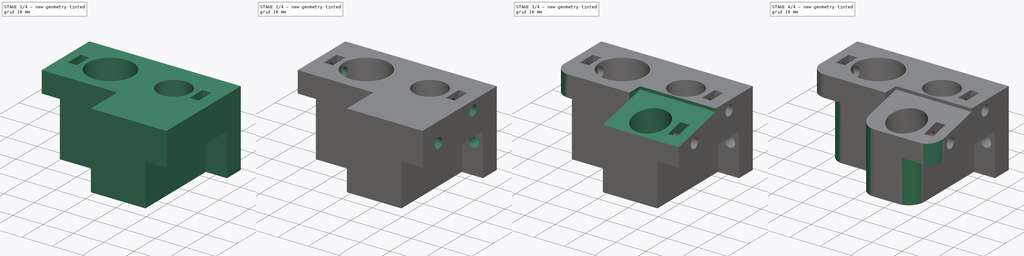
[diagram: build sequence overview — one tinted view per stage of 4, left to right]
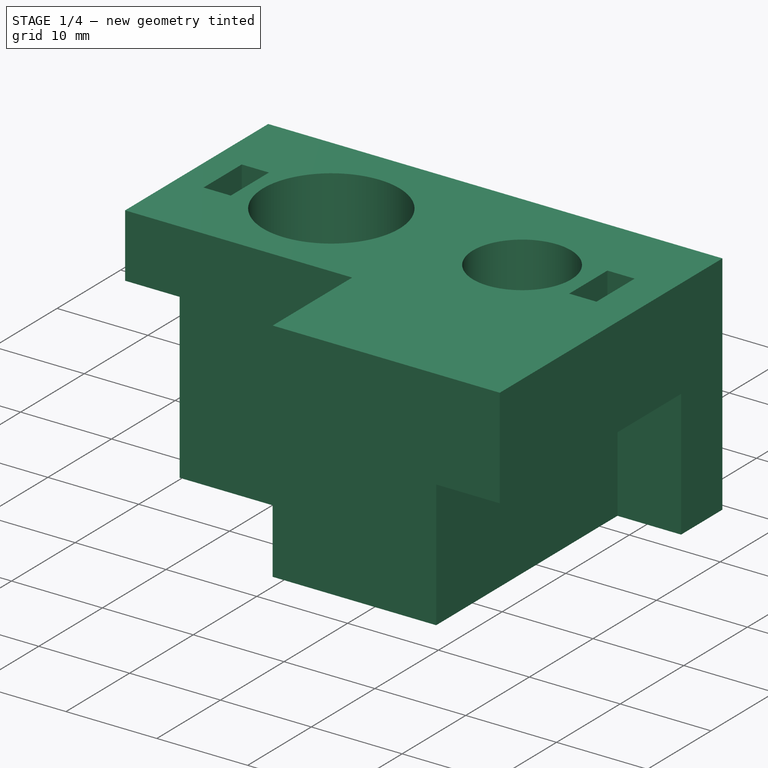
[diagram: stage 1 of 4 — iso view after this stage's code; geometry added in this stage tinted green]
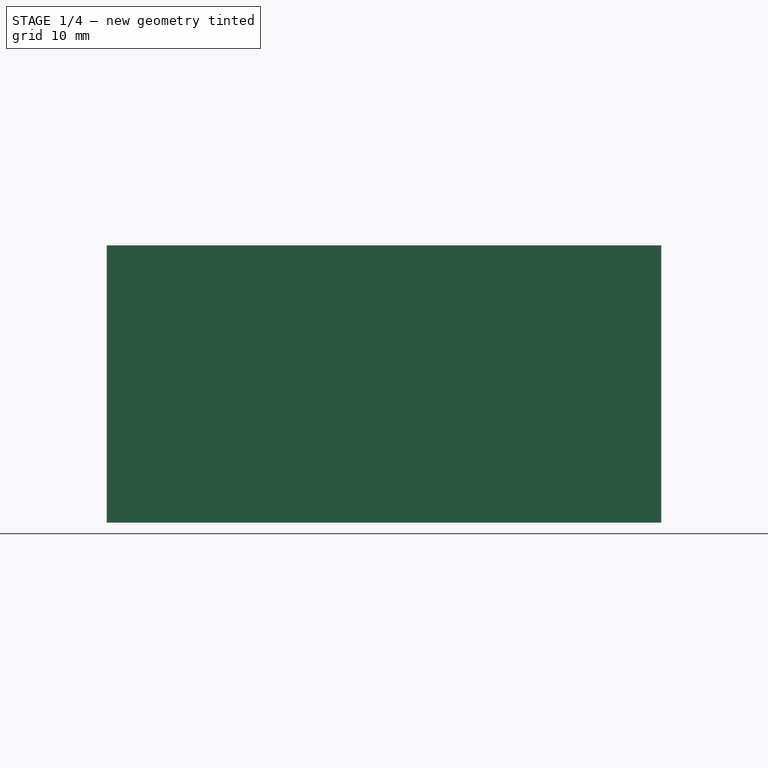
[diagram: stage 1 of 4 — front view after this stage's code; geometry added in this stage tinted green]
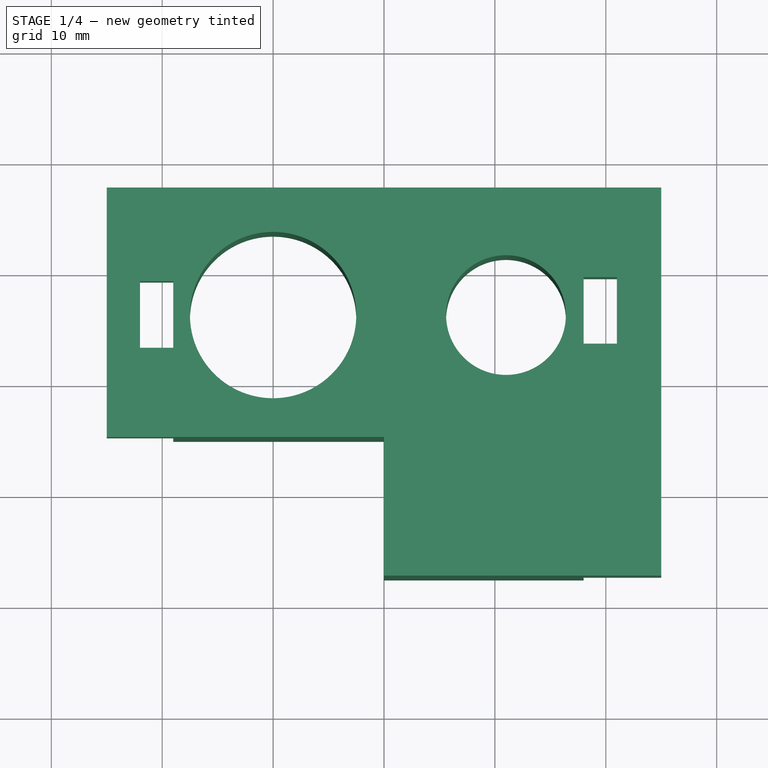
[diagram: stage 1 of 4 — top view after this stage's code; geometry added in this stage tinted green]
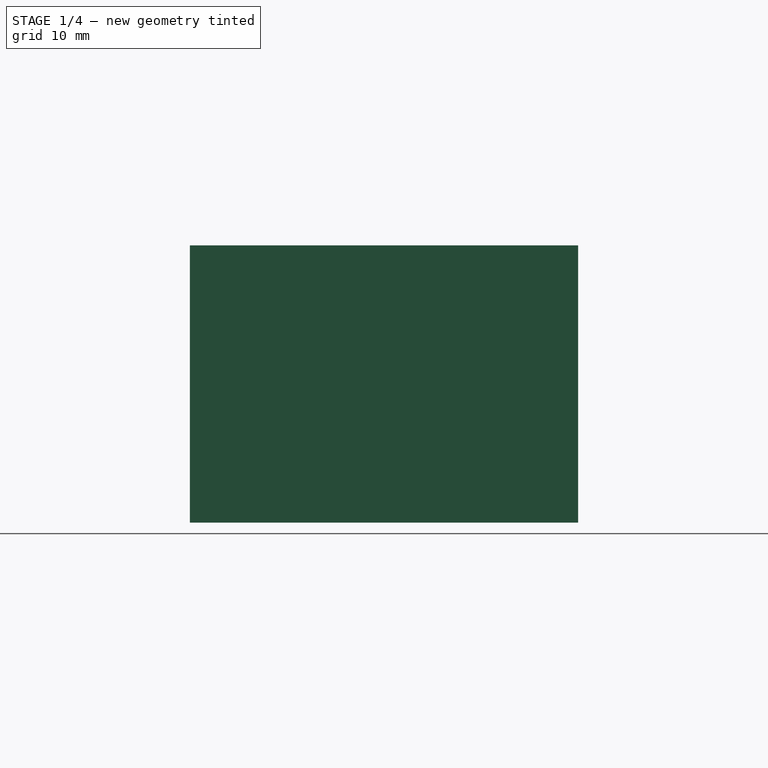
[diagram: stage 1 of 4 — right view after this stage's code; geometry added in this stage tinted green]
FCSTD DOCUMENT  (FreeCAD 0.16R6563 (Git))
Label: solder paste vacuum camera holder
License: All rights reserved
LicenseURL: http://en.wikipedia.org/wiki/All_rights_reserved
objects: Sketcher::SketchObject×9, PartDesign::Pocket×8, PartDesign::Fillet×5, PartDesign::Pad×1
note: 32 computed .brp shape members not serialized (recipe doc carries the construction recipe); baked Part::Feature solids carry a one-line shape summary decoded from their .brp

FEATURE [Sketcher::SketchObject] Sketch
  sketch-geometry (4):
    g0: LineSegment StartX=-25 StartY=17.5 StartZ=0 EndX=25 EndY=17.5 EndZ=0
    g1: LineSegment StartX=25 StartY=17.5 StartZ=0 EndX=25 EndY=-17.5 EndZ=0
    g2: LineSegment StartX=25 StartY=-17.5 StartZ=0 EndX=-25 EndY=-17.5 EndZ=0
    g3: LineSegment StartX=-25 StartY=-17.5 StartZ=0 EndX=-25 EndY=17.5 EndZ=0
  constraints (12):
    c: Coincident(g0,g1)
    c: Coincident(g1,g2)
    c: Coincident(g2,g3)
    c: Coincident(g3,g0)
    c: Horizontal(g0)
    c: Horizontal(g2)
    c: Vertical(g1)
    c: Vertical(g3)
    c: DistanceX(g0) = 50
    c: DistanceY(g3) = 35
    c: Symmetric(g0,g0,g-2)
    c: Symmetric(g2,g0,g-1)
FEATURE [PartDesign::Pad] Pad
  Length = 25
  Length2 = 100
  Sketch = -> Sketch
  Type = 0
FEATURE [Sketcher::SketchObject] Sketch001
  Placement = pos=(0,0,25) rot=(0,0,1;0rad)
  Support = -> Pad [Face6]
  sketch-geometry (2):
    g0: Circle CenterX=-10 CenterY=6 CenterZ=0 NormalX=0 NormalY=0 NormalZ=1 Radius=7.5
    g1: Circle CenterX=11 CenterY=6 CenterZ=0 NormalX=0 NormalY=0 NormalZ=1 Radius=5.4
  constraints (4):
    c: Radius(g0) = 7.5
    c: Radius(g1) = 5.4
    c: DistanceY(g-1,g1) = 6
    c: DistanceY(g-1,g0) = 6
FEATURE [PartDesign::Pocket] Pocket
  Length = 5
  Sketch = -> Sketch001
  Type = 1
FEATURE [Sketcher::SketchObject] Sketch002
  Placement = pos=(0,-17.5,0) rot=(1,0,0;1.5708rad)
  Support = -> Pocket [Face6]
  sketch-geometry (8):
    g0: LineSegment StartX=18 StartY=14 StartZ=0 EndX=26.5934 EndY=14 EndZ=0
    g1: LineSegment StartX=26.5934 StartY=14 StartZ=0 EndX=26.5934 EndY=-3.16181 EndZ=0
    g2: LineSegment StartX=26.5934 StartY=-3.16181 StartZ=0 EndX=18 EndY=-3.16181 EndZ=0
    g3: LineSegment StartX=18 StartY=-3.16181 StartZ=0 EndX=18 EndY=14 EndZ=0
    g4: LineSegment StartX=-25.5775 StartY=18 StartZ=0 EndX=-19 EndY=18 EndZ=0
    g5: LineSegment StartX=-19 StartY=18 StartZ=0 EndX=-19 EndY=-1.92678 EndZ=0
    g6: LineSegment StartX=-19 StartY=-1.92678 StartZ=0 EndX=-25.5775 EndY=-1.92678 EndZ=0
    g7: LineSegment StartX=-25.5775 StartY=-1.92678 StartZ=0 EndX=-25.5775 EndY=18 EndZ=0
  constraints (16):
    c: Coincident(g0,g1)
    c: Coincident(g1,g2)
    c: Coincident(g2,g3)
    c: Coincident(g3,g0)
    c: Horizontal(g0)
    c: Horizontal(g2)
    c: Vertical(g1)
    c: Vertical(g3)
    c: Coincident(g4,g5)
    c: Coincident(g5,g6)
    c: Coincident(g6,g7)
    c: Coincident(g7,g4)
    c: Horizontal(g4)
    c: Horizontal(g6)
    c: Vertical(g5)
    c: Vertical(g7)
FEATURE [PartDesign::Pocket] Pocket001
  Length = 28.5
  Sketch = -> Sketch002
  Type = 0
FEATURE [Sketcher::SketchObject] Sketch003
  Placement = pos=(0,0,25) rot=(0,0,1;0rad)
  Support = -> Pocket001 [Face5]
  sketch-geometry (12):
    g0: LineSegment StartX=-22 StartY=9.05092 StartZ=0 EndX=-19 EndY=9.05092 EndZ=0
    g1: LineSegment StartX=-19 StartY=9.05092 StartZ=0 EndX=-19 EndY=3.05092 EndZ=0
    g2: LineSegment StartX=-19 StartY=3.05092 StartZ=0 EndX=-22 EndY=3.05092 EndZ=0
    g3: LineSegment StartX=-22 StartY=3.05092 StartZ=0 EndX=-22 EndY=9.05092 EndZ=0
    g4: LineSegment StartX=17.9954 StartY=9.41877 StartZ=0 EndX=20.9954 EndY=9.41877 EndZ=0
    g5: LineSegment StartX=20.9954 StartY=9.41877 StartZ=0 EndX=20.9954 EndY=3.41877 EndZ=0
    g6: LineSegment StartX=20.9954 StartY=3.41877 StartZ=0 EndX=17.9954 EndY=3.41877 EndZ=0
    g7: LineSegment StartX=17.9954 StartY=3.41877 StartZ=0 EndX=17.9954 EndY=9.41877 EndZ=0
    g8: LineSegment StartX=-26 StartY=-5 StartZ=0 EndX=0 EndY=-5 EndZ=0
    g9: LineSegment StartX=0 StartY=-5 StartZ=0 EndX=0 EndY=-18.234 EndZ=0
    g10: LineSegment StartX=0 StartY=-18.234 StartZ=0 EndX=-26 EndY=-18.234 EndZ=0
    g11: LineSegment StartX=-26 StartY=-18.234 StartZ=0 EndX=-26 EndY=-5 EndZ=0
  constraints (28):
    c: Coincident(g0,g1)
    c: Coincident(g1,g2)
    c: Coincident(g2,g3)
    c: Coincident(g3,g0)
    c: Horizontal(g0)
    c: Horizontal(g2)
    c: Vertical(g1)
    c: Vertical(g3)
    c: Coincident(g4,g5)
    c: Coincident(g5,g6)
    c: Coincident(g6,g7)
    c: Coincident(g7,g4)
    c: Horizontal(g4)
    c: Horizontal(g6)
    c: Vertical(g5)
    c: Vertical(g7)
    c: DistanceX(g0) = 3
    c: DistanceX(g4) = 3
    c: DistanceY(g3) = 6
    c: DistanceY(g7) = 6
    c: Coincident(g8,g9)
    c: Coincident(g9,g10)
    c: Coincident(g10,g11)
    c: Coincident(g11,g8)
    c: Horizontal(g8)
    c: Horizontal(g10)
    c: Vertical(g9)
    c: Vertical(g11)
FEATURE [PartDesign::Pocket] Pocket002
  Length = 5
  Sketch = -> Sketch003
  Type = 1
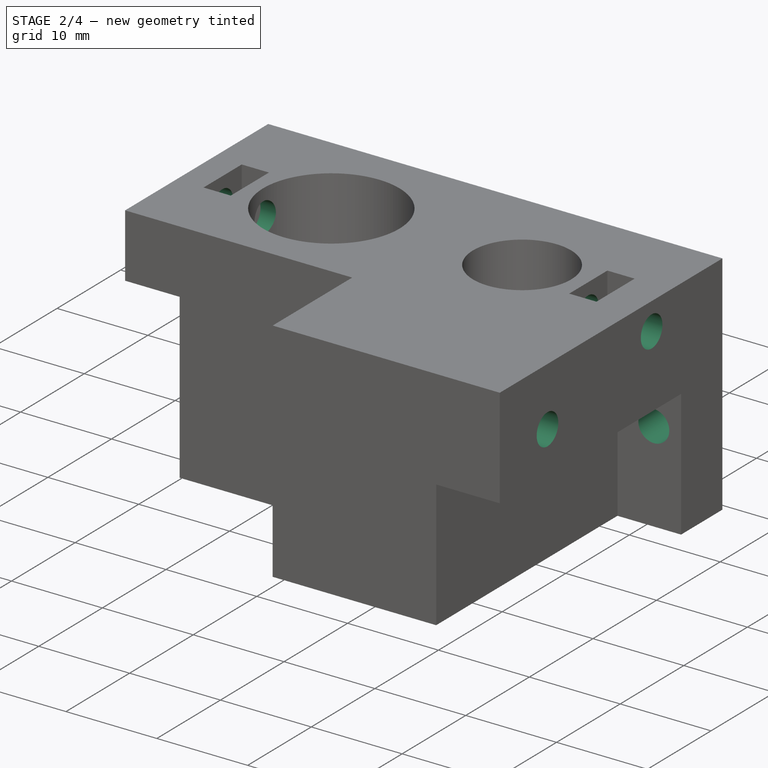
[diagram: stage 2 of 4 — iso view after this stage's code; geometry added in this stage tinted green]
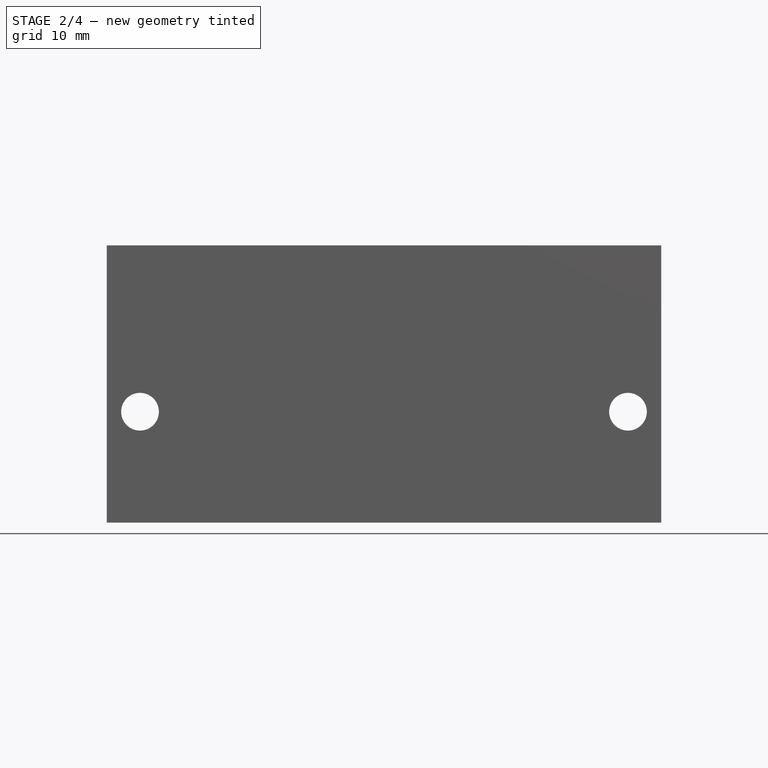
[diagram: stage 2 of 4 — front view after this stage's code; geometry added in this stage tinted green]
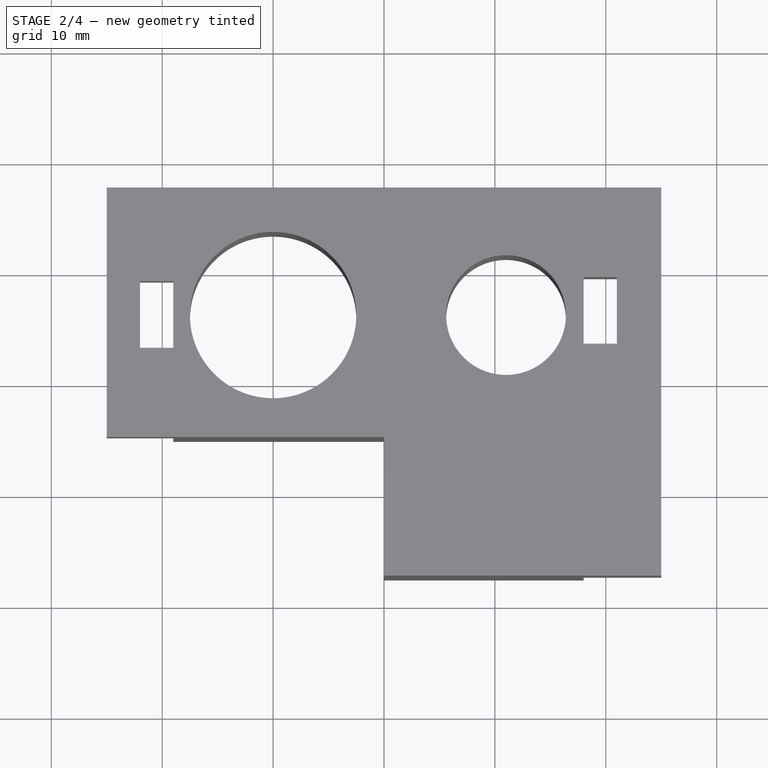
[diagram: stage 2 of 4 — top view after this stage's code; geometry added in this stage tinted green]
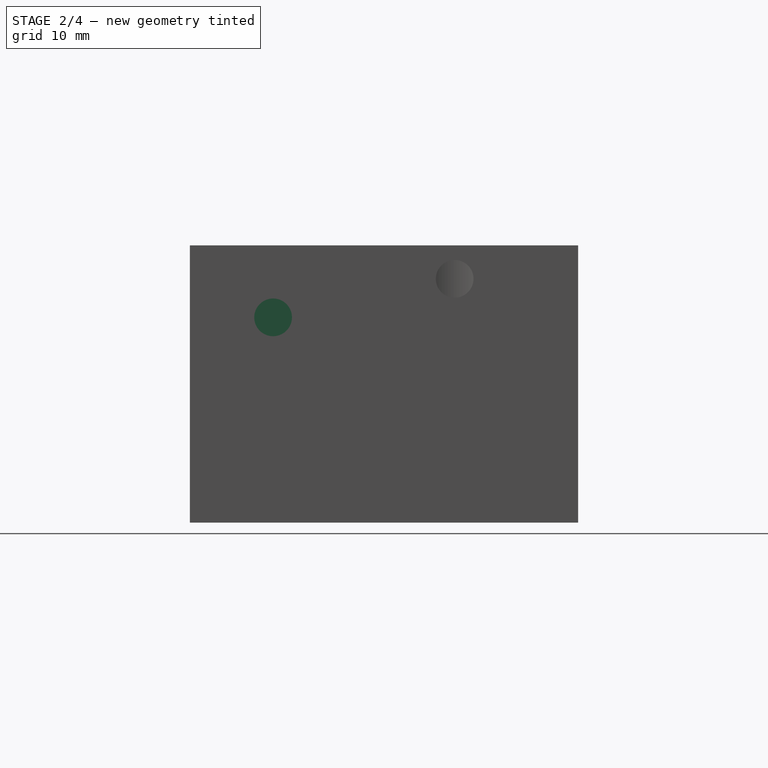
[diagram: stage 2 of 4 — right view after this stage's code; geometry added in this stage tinted green]
FEATURE [Sketcher::SketchObject] Sketch004
  ExternalGeometry = -> [Pocket002]
  Placement = pos=(25,0,0) rot=(0.57735,0.57735,0.57735;2.0944rad)
  Support = -> Pocket002 [Face3]
  sketch-geometry (2):
    g0: Circle CenterX=6.37093 CenterY=21.9852 CenterZ=0 NormalX=0 NormalY=0 NormalZ=1 Radius=1.7
    g1: Circle CenterX=-10 CenterY=18.5094 CenterZ=0 NormalX=0 NormalY=0 NormalZ=1 Radius=1.7
  constraints (2):
    c: Radius(g0) = 1.7
    c: Radius(g1) = 1.7
FEATURE [PartDesign::Pocket] Pocket003
  Length = 15
  Sketch = -> Sketch004
  Type = 0
FEATURE [Sketcher::SketchObject] Sketch005
  ExternalGeometry = -> [Pocket003]
  Placement = pos=(-25,0,0) rot=(0.57735,-0.57735,-0.57735;2.0944rad)
  Support = -> Pocket003 [Face2]
  sketch-geometry (1):
    g0: Circle CenterX=-6.01338 CenterY=22.0083 CenterZ=0 NormalX=0 NormalY=0 NormalZ=1 Radius=1.7
  constraints (1):
    c: Radius(g0) = 1.7
FEATURE [PartDesign::Pocket] Pocket004
  Length = 15
  Sketch = -> Sketch005
  Type = 0
FEATURE [Sketcher::SketchObject] Sketch006
  Placement = pos=(0,17.5,0) rot=(0,0.707107,0.707107;3.14159rad)
  Support = -> Pocket004 [Face1]
  sketch-geometry (2):
    g0: Circle CenterX=-22 CenterY=10 CenterZ=0 NormalX=0 NormalY=0 NormalZ=1 Radius=1.7
    g1: Circle CenterX=22 CenterY=10 CenterZ=0 NormalX=0 NormalY=0 NormalZ=1 Radius=1.7
  constraints (4):
    c: Radius(g0) = 1.7
    c: Equal(g0,g1)
    c: DistanceY(g-1,g1) = 10
    c: DistanceY(g-1,g0) = 10
FEATURE [PartDesign::Pocket] Pocket005
  Length = 5
  Sketch = -> Sketch006
  Type = 1
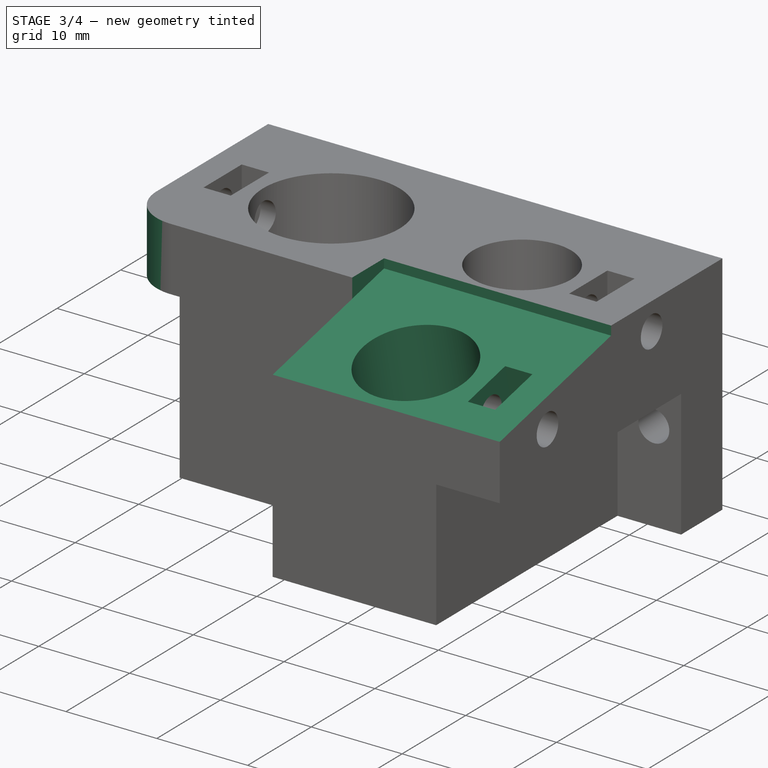
[diagram: stage 3 of 4 — iso view after this stage's code; geometry added in this stage tinted green]
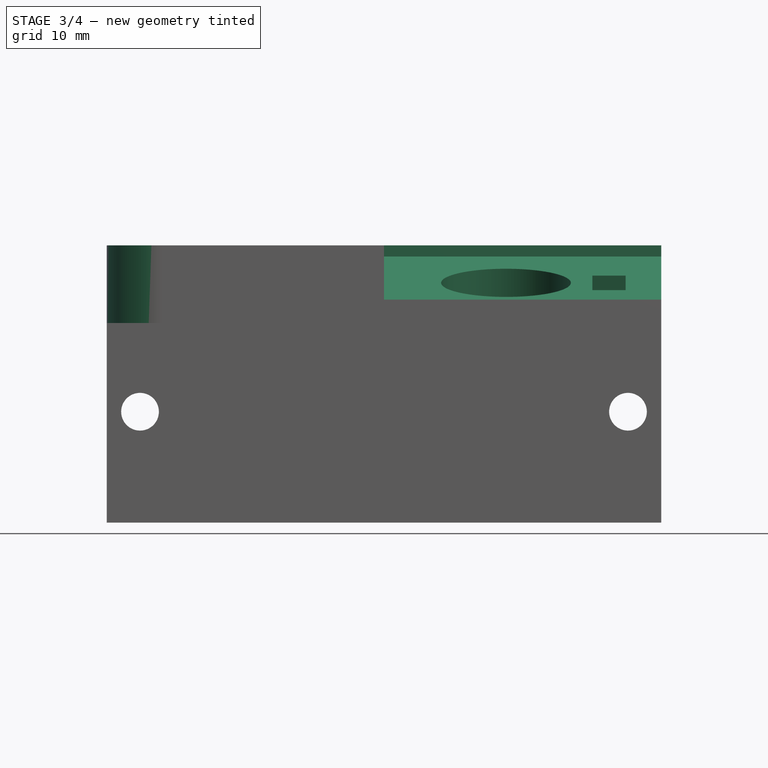
[diagram: stage 3 of 4 — front view after this stage's code; geometry added in this stage tinted green]
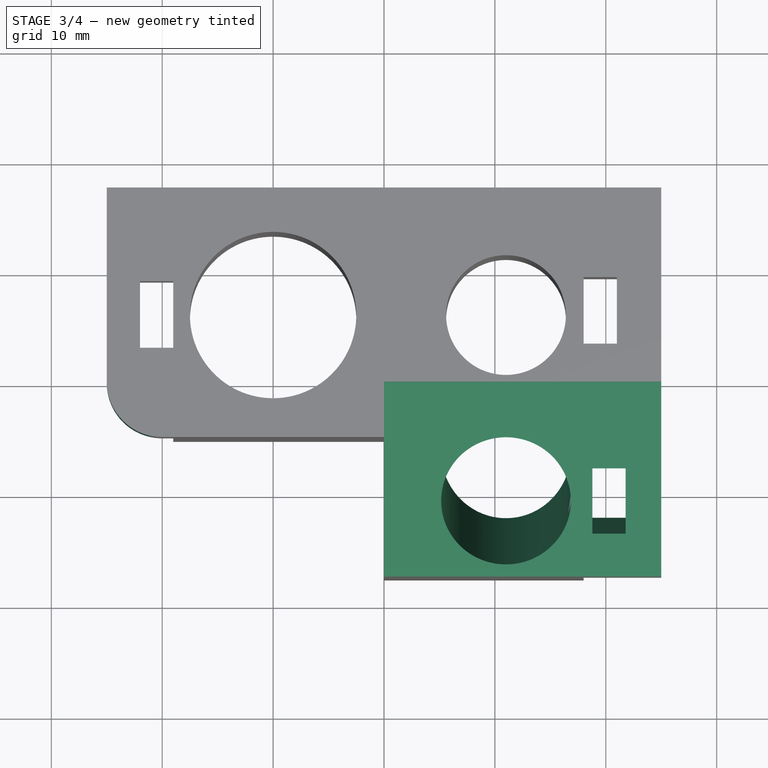
[diagram: stage 3 of 4 — top view after this stage's code; geometry added in this stage tinted green]
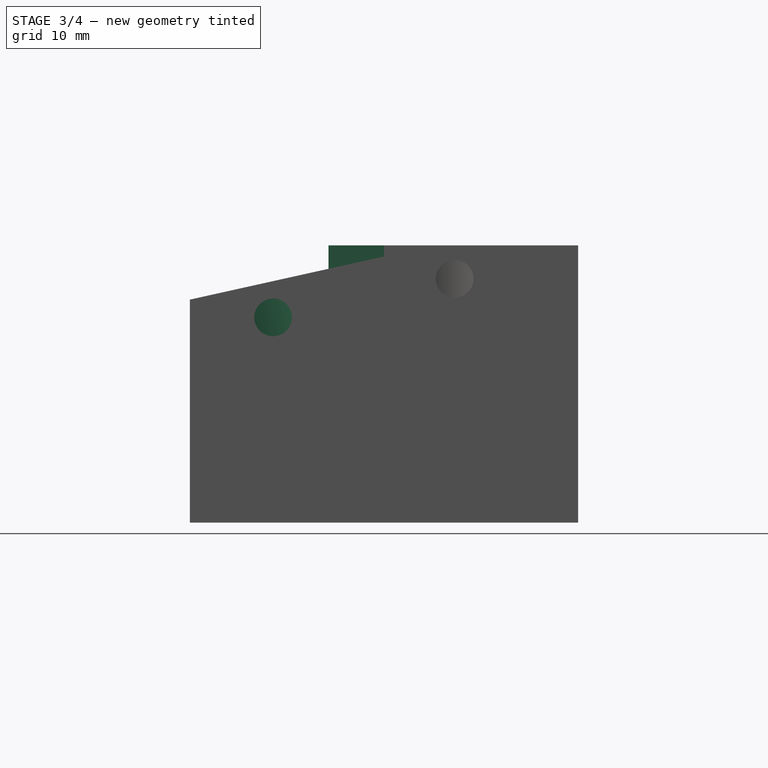
[diagram: stage 3 of 4 — right view after this stage's code; geometry added in this stage tinted green]
FEATURE [Sketcher::SketchObject] Sketch007
  Placement = pos=(25,0,0) rot=(0.57735,0.57735,0.57735;2.0944rad)
  Support = -> Pocket005 [Face5]
  sketch-geometry (4):
    g0: LineSegment StartX=0 StartY=25 StartZ=0 EndX=0 EndY=24 EndZ=0
    g1: LineSegment StartX=0 StartY=24 StartZ=0 EndX=-18 EndY=20 EndZ=0
    g2: LineSegment StartX=-18 StartY=20 StartZ=0 EndX=-18 EndY=25 EndZ=0
    g3: LineSegment StartX=-18 StartY=25 StartZ=0 EndX=0 EndY=25 EndZ=0
  constraints (8):
    c: PointOnObject(g0,g-2)
    c: PointOnObject(g0,g-2)
    c: Coincident(g0,g1)
    c: Coincident(g1,g2)
    c: Vertical(g2)
    c: Coincident(g2,g3)
    c: Coincident(g3,g0)
    c: Horizontal(g3)
FEATURE [PartDesign::Pocket] Pocket006
  Length = 25
  Sketch = -> Sketch007
  Type = 0
FEATURE [Sketcher::SketchObject] Sketch008
  Placement = pos=(0,-5.08235,22.8706) rot=(1,0,0;0.218669rad)
  Support = -> Pocket006 [Face33]
  sketch-geometry (5):
    g0: Circle CenterX=11 CenterY=-5.75052 CenterZ=0 NormalX=0 NormalY=0 NormalZ=1 Radius=5.85
    g1: LineSegment StartX=18.7856 StartY=-2.7653 StartZ=0 EndX=21.7856 EndY=-2.7653 EndZ=0
    g2: LineSegment StartX=21.7856 StartY=-2.7653 StartZ=0 EndX=21.7856 EndY=-8.7653 EndZ=0
    g3: LineSegment StartX=21.7856 StartY=-8.7653 StartZ=0 EndX=18.7856 EndY=-8.7653 EndZ=0
    g4: LineSegment StartX=18.7856 StartY=-8.7653 StartZ=0 EndX=18.7856 EndY=-2.7653 EndZ=0
  constraints (11):
    c: Radius(g0) = 5.85
    c: Coincident(g1,g2)
    c: Coincident(g2,g3)
    c: Coincident(g3,g4)
    c: Coincident(g4,g1)
    c: Horizontal(g1)
    c: Horizontal(g3)
    c: Vertical(g2)
    c: Vertical(g4)
    c: DistanceX(g1) = 3
    c: DistanceY(g4) = 6
FEATURE [PartDesign::Pocket] Pocket007
  Length = 5
  Sketch = -> Sketch008
  Type = 1
FEATURE [PartDesign::Fillet] Fillet
  Base = -> Pocket007 [Edge10]
  Radius = 5
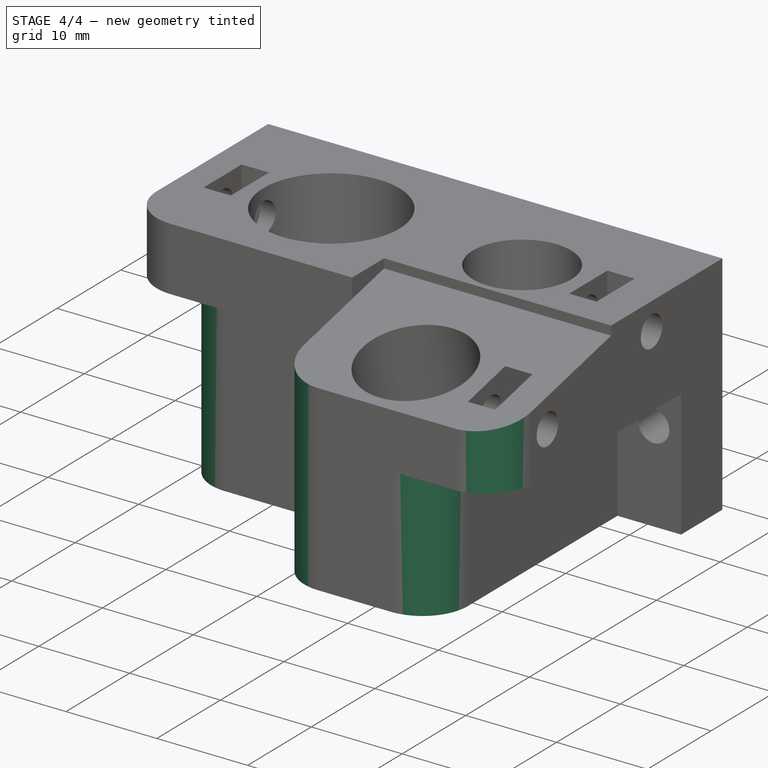
[diagram: stage 4 of 4 — iso view after this stage's code; geometry added in this stage tinted green]
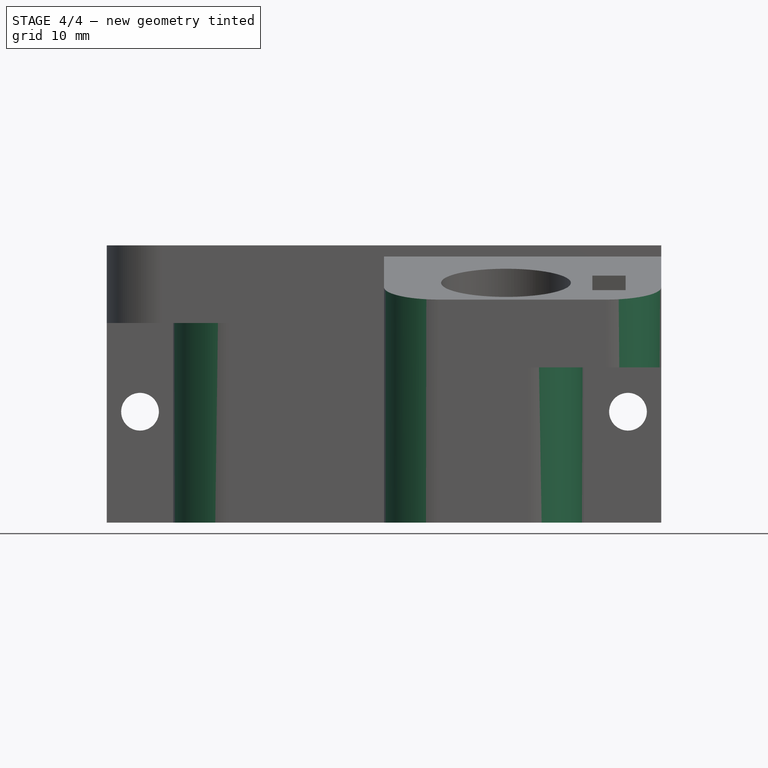
[diagram: stage 4 of 4 — front view after this stage's code; geometry added in this stage tinted green]
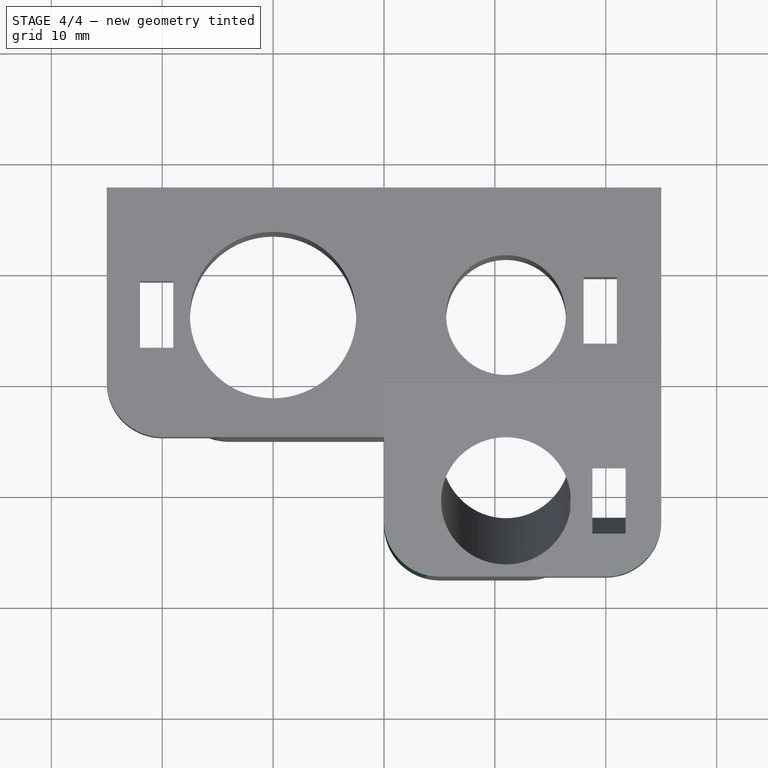
[diagram: stage 4 of 4 — top view after this stage's code; geometry added in this stage tinted green]
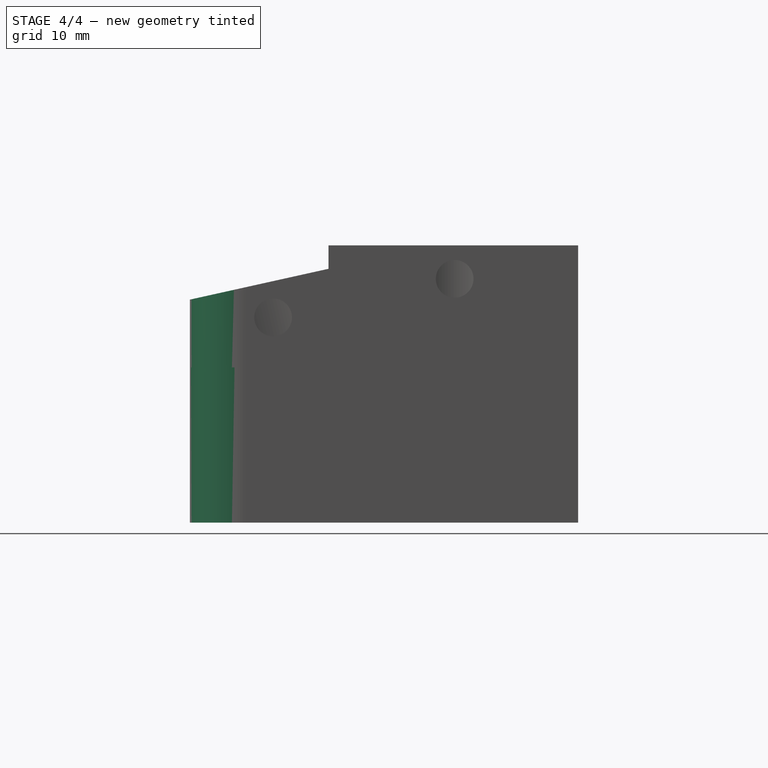
[diagram: stage 4 of 4 — right view after this stage's code; geometry added in this stage tinted green]
FEATURE [PartDesign::Fillet] Fillet001
  Base = -> Fillet [Edge60]
  Radius = 5
FEATURE [PartDesign::Fillet] Fillet002
  Base = -> Fillet001 [Edge69]
  Radius = 5
FEATURE [PartDesign::Fillet] Fillet003
  Base = -> Fillet002 [Edge33]
  Radius = 5
FEATURE [PartDesign::Fillet] Fillet004
  Base = -> Fillet003 [Edge28]
  Radius = 5
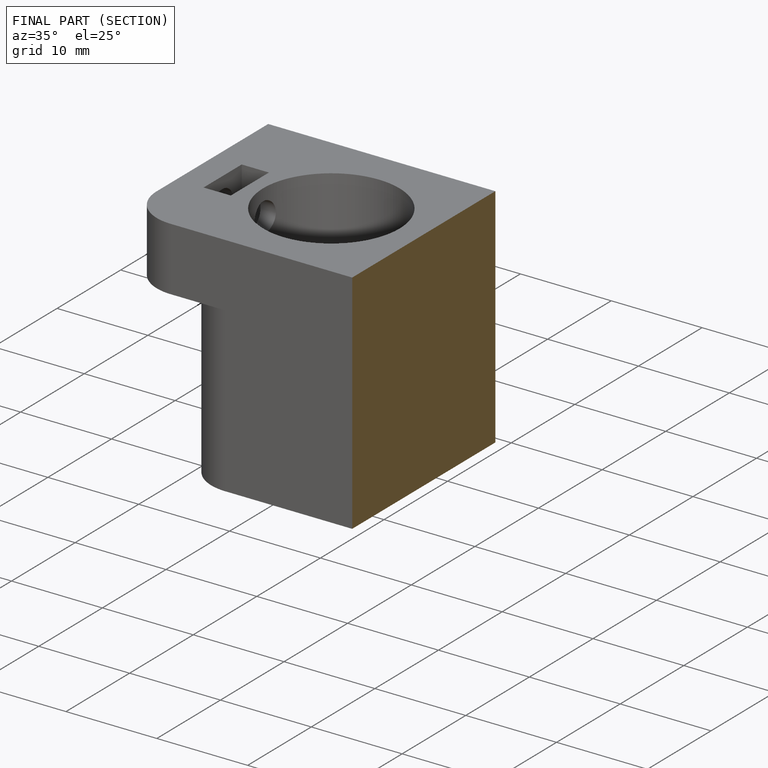
[diagram: finished part — half-section view (interior)]
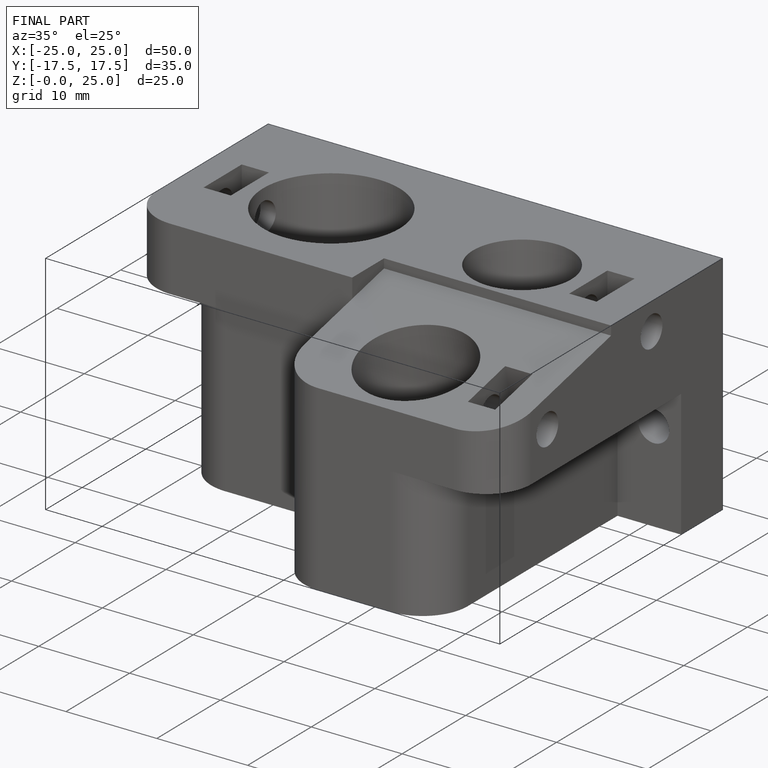
[diagram: finished part — iso view with bounding-box wireframe]
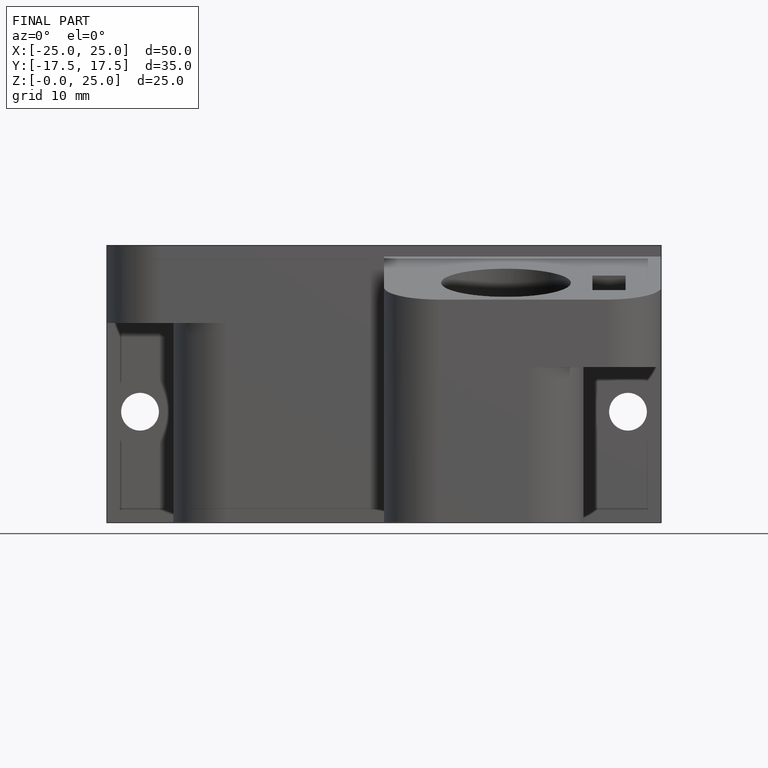
[diagram: finished part — front view with bounding-box wireframe]
